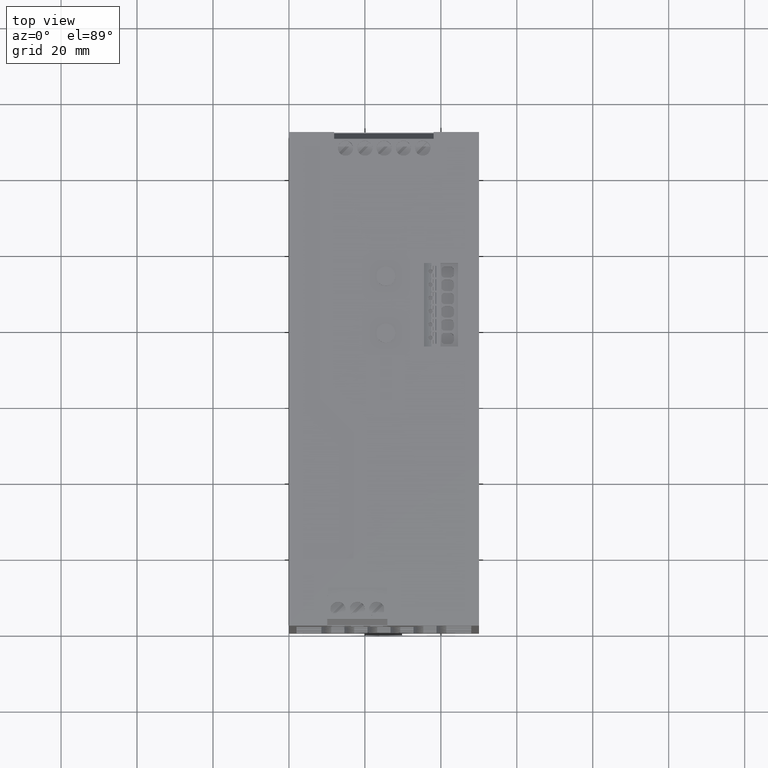
[diagram: clean part render]
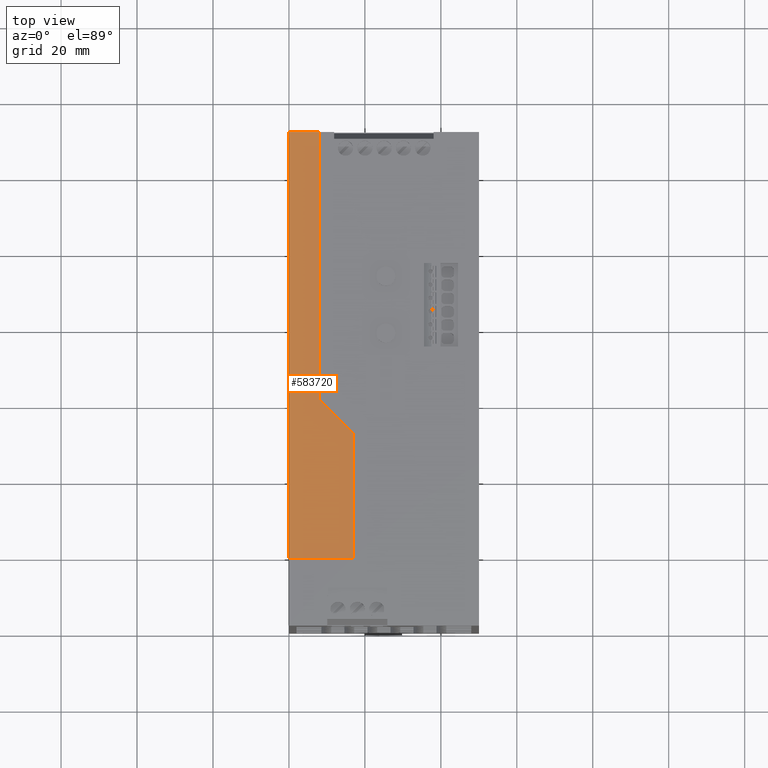
[diagram: same view with one face highlighted and labeled with its STEP entity id]
A machine part, top view. The second image highlights one B-rep face of the part: STEP entity #583720.
In plain terms, the highlighted planar face has unit normal (-0, -0, 1).
Its self-contained STEP definition (entity closure, byte-faithful):
#261940=CARTESIAN_POINT('',(-14.06,122.,111.599161102275));
#261950=VERTEX_POINT('',#261940);
#261980=CARTESIAN_POINT('',(0.,122.,111.598967821982));
#261990=DIRECTION('',(-0.999999999905512,0.,1.37468202359202E-5));
#262000=VECTOR('',#261990,1.);
#262010=LINE('',#261980,#262000);
#262020=CARTESIAN_POINT('',(2.94000000000006,122.,111.59892740633));
#262030=VERTEX_POINT('',#262020);
#262040=EDGE_CURVE('',#262030,#261950,#262010,.T.);
#508750=CARTESIAN_POINT('',(2.94000000000006,122.,0.));
#508760=DIRECTION('',(0.,0.,1.));
#508770=VECTOR('',#508760,1.);
#508780=LINE('',#508750,#508770);
#508790=CARTESIAN_POINT('',(2.94000000000006,122.,78.510809806789));
#508800=VERTEX_POINT('',#508790);
#508810=EDGE_CURVE('',#508800,#262030,#508780,.T.);
#545430=CARTESIAN_POINT('',(-6.05999999999999,122.,-0.800000000000011));
#545440=VERTEX_POINT('',#545430);
#545470=CARTESIAN_POINT('',(0.,122.,-0.800000000000011));
#545480=DIRECTION('',(1.,0.,0.));
#545490=VECTOR('',#545480,1.);
#545500=LINE('',#545470,#545490);
#545510=CARTESIAN_POINT('',(-14.06,122.,-0.800000000000011));
#545520=VERTEX_POINT('',#545510);
#545530=EDGE_CURVE('',#545520,#545440,#545500,.T.);
#583420=CARTESIAN_POINT('',(-8.05999999999573,122.,54.8824629050541));
#583430=DIRECTION('',(0.,1.,0.));
#583440=DIRECTION('',(0.999995687458094,0.,-0.00293684613377792));
#583450=AXIS2_PLACEMENT_3D('',#583420,#583430,#583440);
#583460=PLANE('',#583450);
#583470=CARTESIAN_POINT('',(-6.05999999999999,122.,0.));
#583480=DIRECTION('',(5.24753851482984E-17,0.,1.));
#583490=VECTOR('',#583480,1.);
#583500=LINE('',#583470,#583490);
#583510=CARTESIAN_POINT('',(-6.05999999999999,122.,69.5110572461517));
#583520=VERTEX_POINT('',#583510);
#583530=EDGE_CURVE('',#545440,#583520,#583500,.T.);
#583540=ORIENTED_EDGE('',*,*,#583530,.F.);
#583550=CARTESIAN_POINT('',(0.,122.,75.5708906369807));
#583560=DIRECTION('',(-0.707116501589543,0.,-0.707097060649926));
#583570=VECTOR('',#583560,1.);
#583580=LINE('',#583550,#583570);
#583590=EDGE_CURVE('',#508800,#583520,#583580,.T.);
#583600=ORIENTED_EDGE('',*,*,#583590,.T.);
#583610=ORIENTED_EDGE('',*,*,#508810,.F.);
#583620=ORIENTED_EDGE('',*,*,#262040,.F.);
#583630=CARTESIAN_POINT('',(-14.06,122.,0.));
#583640=DIRECTION('',(0.,0.,-1.));
#583650=VECTOR('',#583640,1.);
#583660=LINE('',#583630,#583650);
#583670=EDGE_CURVE('',#261950,#545520,#583660,.T.);
#583680=ORIENTED_EDGE('',*,*,#583670,.F.);
#583690=ORIENTED_EDGE('',*,*,#545530,.F.);
#583700=EDGE_LOOP('',(#583690,#583680,#583620,#583610,#583600,#583540));
#583710=FACE_OUTER_BOUND('',#583700,.T.);
#583720=ADVANCED_FACE('',(#583710),#583460,.T.);